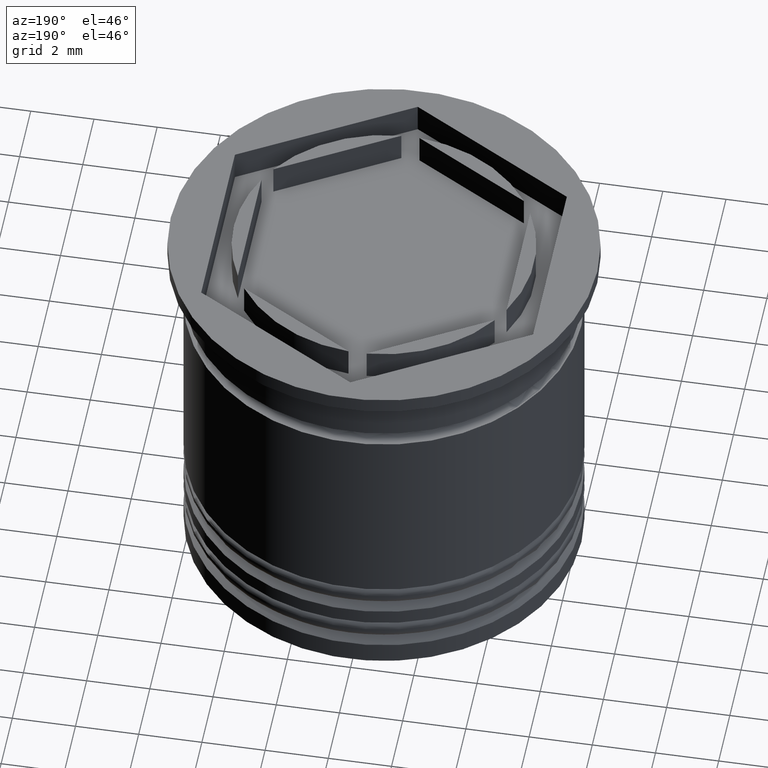
[diagram: clean part render]
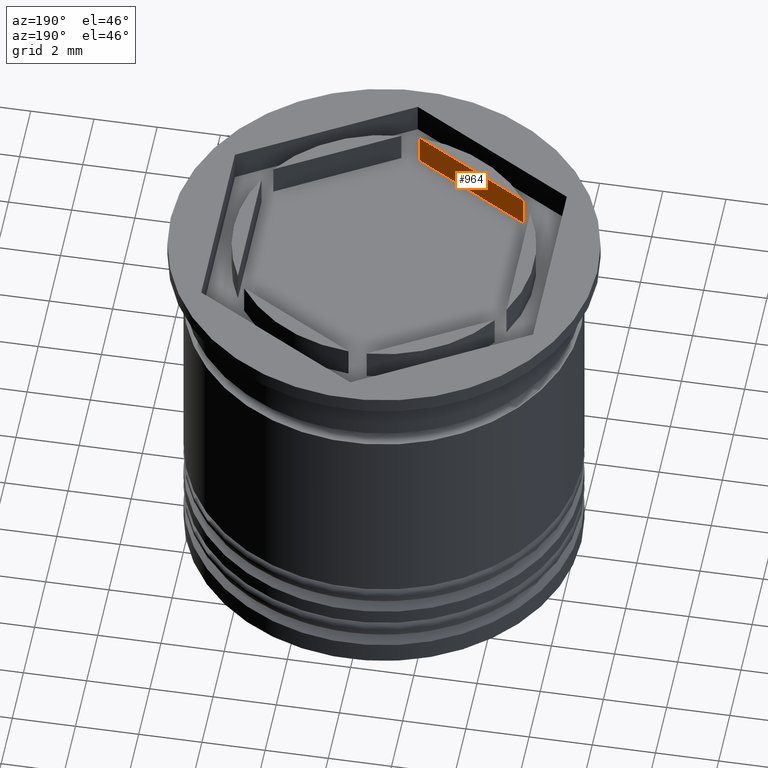
[diagram: same view with one face highlighted and labeled with its STEP entity id]
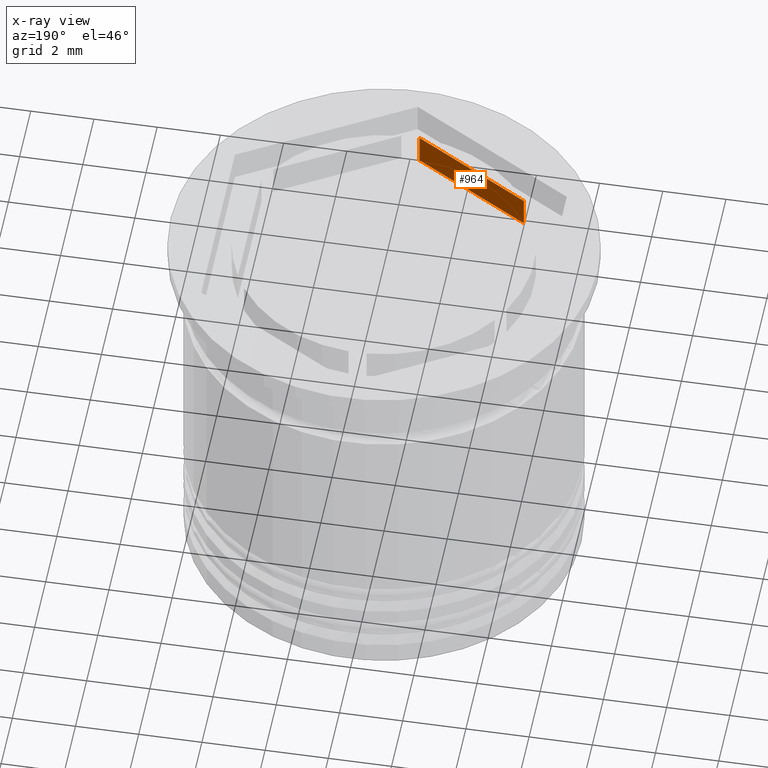
[diagram: x-ray of the same camera — body ghosted, the highlighted face saturated]
A machine part, auxiliary view. The second image highlights one B-rep face of the part: STEP entity #964.
The next image is the same camera in x-ray: the body ghosted, the highlighted face saturated — about 0% of this face is hidden behind the body in this view.
In plain terms, the highlighted planar face has unit normal (-0.5, -0.866, 0).
Its self-contained STEP definition (entity closure, byte-faithful):
#183 = LINE ( 'NONE', #823, #1446 ) ;
#201 = VECTOR ( 'NONE', #1680, 1000.000000000000000 ) ;
#249 = EDGE_CURVE ( 'NONE', #313, #981, #183, .T. ) ;
#304 = ORIENTED_EDGE ( 'NONE', *, *, #1575, .T. ) ;
#313 = VERTEX_POINT ( 'NONE', #1544 ) ;
#365 = VECTOR ( 'NONE', #1966, 1000.000000000000000 ) ;
#422 = ORIENTED_EDGE ( 'NONE', *, *, #249, .T. ) ;
#476 = CARTESIAN_POINT ( 'NONE',  ( -3.962117307087382745, -2.619947794304042787, -1.000000000000000000 ) ) ;
#606 = CARTESIAN_POINT ( 'NONE',  ( -0.2878826929126141465, -4.741268137863684728, -1.000000000000000000 ) ) ;
#651 = DIRECTION ( 'NONE',  ( 0.8660254037844387076, -0.4999999999999997224, 0.000000000000000000 ) ) ;
#823 = CARTESIAN_POINT ( 'NONE',  ( -2.124999999999998224, -3.680607966083863758, 0.000000000000000000 ) ) ;
#835 = EDGE_CURVE ( 'NONE', #981, #1668, #1836, .T. ) ;
#873 = AXIS2_PLACEMENT_3D ( 'NONE', #972, #1554, #651 ) ;
#964 = ADVANCED_FACE ( 'NONE', ( #1269 ), #1877, .F. ) ;
#972 = CARTESIAN_POINT ( 'NONE',  ( -4.249999999999998224, -2.453738644055909912, -13.98396446904154011 ) ) ;
#981 = VERTEX_POINT ( 'NONE', #1545 ) ;
#1111 = DIRECTION ( 'NONE',  ( -0.8660254037844387076, 0.4999999999999997224, 0.000000000000000000 ) ) ;
#1135 = ORIENTED_EDGE ( 'NONE', *, *, #1816, .T. ) ;
#1250 = CARTESIAN_POINT ( 'NONE',  ( -4.249999999999998224, -2.453738644055909912, -1.000000000000000888 ) ) ;
#1269 = FACE_OUTER_BOUND ( 'NONE', #1621, .T. ) ;
#1446 = VECTOR ( 'NONE', #1564, 1000.000000000000114 ) ;
#1508 = LINE ( 'NONE', #476, #201 ) ;
#1544 = CARTESIAN_POINT ( 'NONE',  ( -3.962117307087382745, -2.619947794304042787, 0.000000000000000000 ) ) ;
#1545 = CARTESIAN_POINT ( 'NONE',  ( -0.2878826929126141465, -4.741268137863685617, 0.000000000000000000 ) ) ;
#1554 = DIRECTION ( 'NONE',  ( -0.4999999999999997780, -0.8660254037844388186, 0.000000000000000000 ) ) ;
#1564 = DIRECTION ( 'NONE',  ( 0.8660254037844387076, -0.4999999999999997224, 0.000000000000000000 ) ) ;
#1575 = EDGE_CURVE ( 'NONE', #1668, #1585, #1711, .T. ) ;
#1585 = VERTEX_POINT ( 'NONE', #1721 ) ;
#1621 = EDGE_LOOP ( 'NONE', ( #1991, #304, #1135, #422 ) ) ;
#1668 = VERTEX_POINT ( 'NONE', #1947 ) ;
#1680 = DIRECTION ( 'NONE',  ( -0.000000000000000000, -0.000000000000000000, 1.000000000000000000 ) ) ;
#1711 = LINE ( 'NONE', #1250, #1900 ) ;
#1721 = CARTESIAN_POINT ( 'NONE',  ( -3.962117307087382745, -2.619947794304042787, -1.000000000000000888 ) ) ;
#1816 = EDGE_CURVE ( 'NONE', #1585, #313, #1508, .T. ) ;
#1836 = LINE ( 'NONE', #606, #365 ) ;
#1877 = PLANE ( 'NONE',  #873 ) ;
#1900 = VECTOR ( 'NONE', #1111, 1000.000000000000114 ) ;
#1947 = CARTESIAN_POINT ( 'NONE',  ( -0.2878826929126141465, -4.741268137863685617, -1.000000000000000888 ) ) ;
#1966 = DIRECTION ( 'NONE',  ( 0.000000000000000000, 0.000000000000000000, -1.000000000000000000 ) ) ;
#1991 = ORIENTED_EDGE ( 'NONE', *, *, #835, .T. ) ;